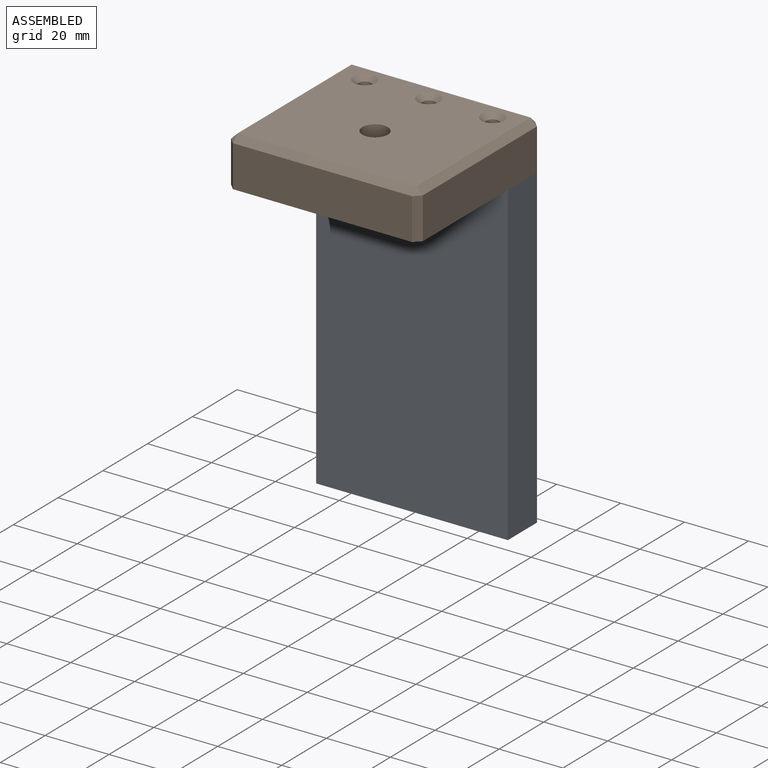
[diagram: assembled view]
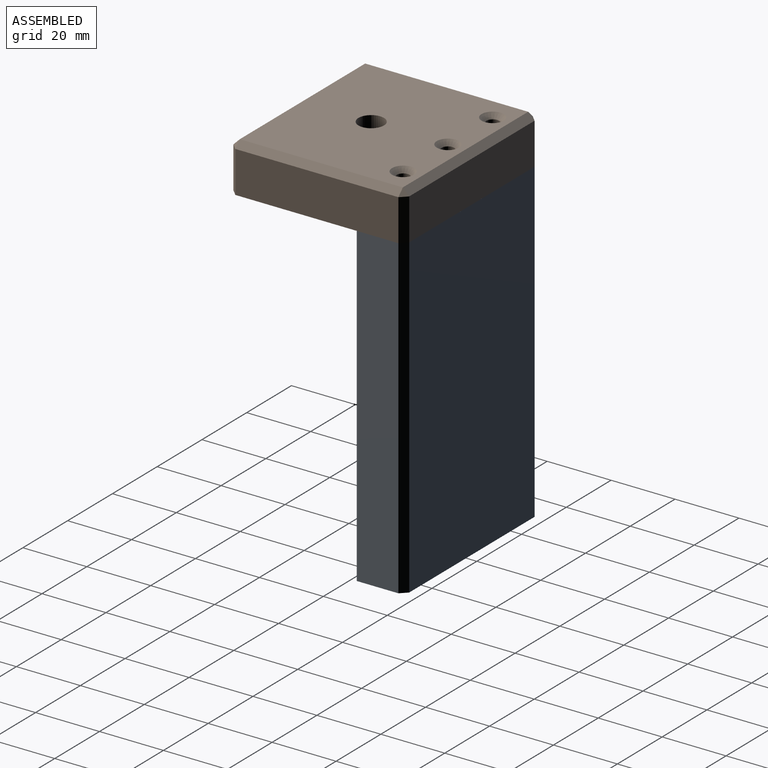
[diagram: assembled view, second angle]
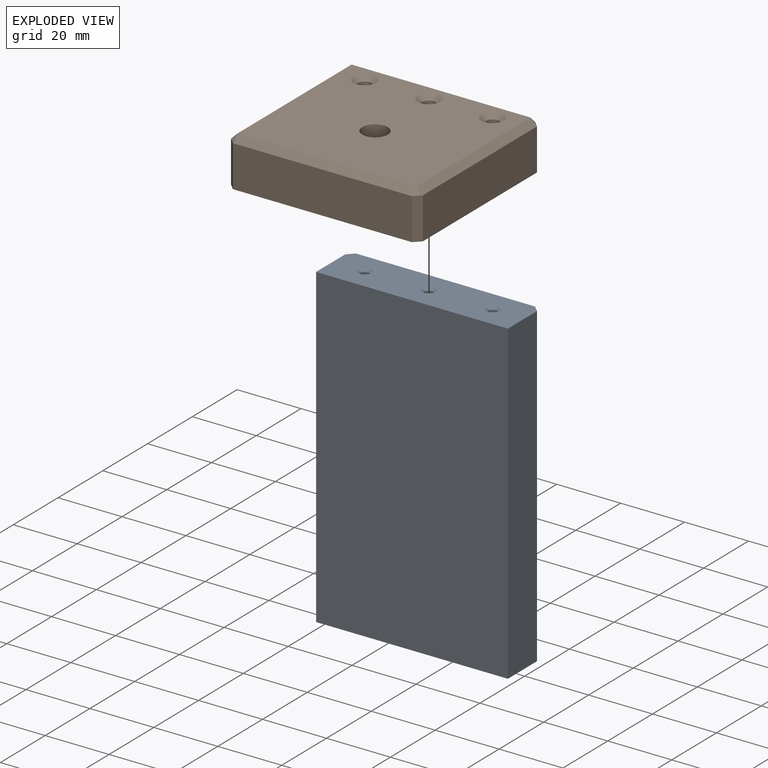
[diagram: exploded view]
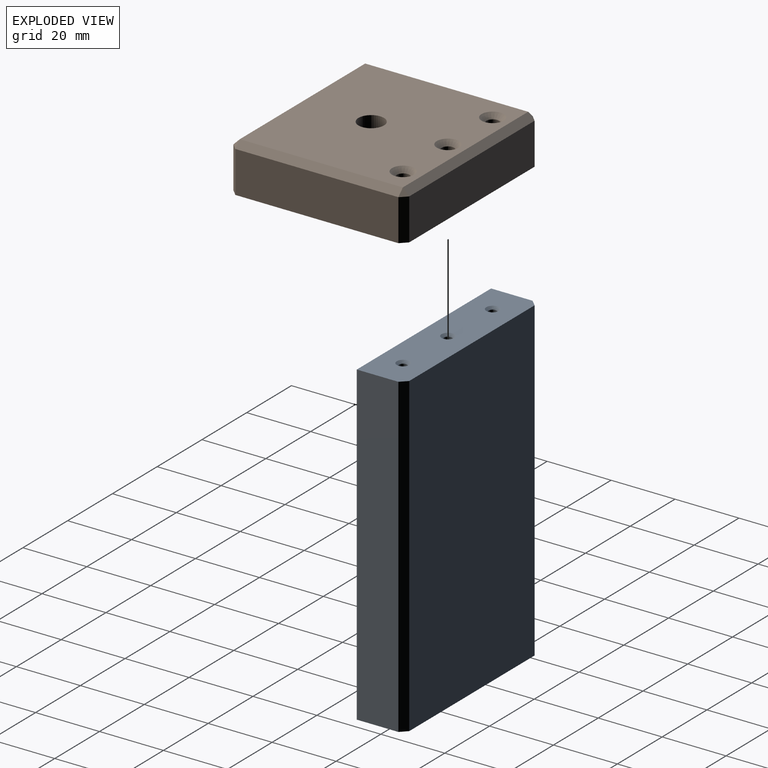
[diagram: exploded view, second angle]
ASSEMBLY  parts=2 mates=3
PART A: 17 faces, bbox 60x15x99 mm
  f0: plane 60x15mm, normal (0,0,1), area 858.3mm2, adj f1,f2,f3,f4,f7,f10,f13,f15
  f1: plane 99x13mm, normal (1,0,0), area 1287mm2, adj f0,f4,f5,f16
  f2: plane 99x56mm, normal (0,1,0), area 5544mm2, adj f0,f5,f15,f16
  f3: plane 99x13mm, normal (-1,0,0), area 1287mm2, adj f0,f4,f5,f15
  f4: plane 99x60mm, normal (0,-1,0), area 5940mm2, adj f0,f1,f3,f5
  f5: plane 60x15mm, normal (0,0,-1), area 896mm2, adj f1,f2,f3,f4,f15,f16
  f6: cylinder r=1.25mm len=24.25mm, axis (0,0,1), area 190.5mm2, adj f7,f8
  f7: cone r=1.25mm half-angle=45deg, axis (0,0,1), area 10.8mm2, adj f0,f6
  f8: cone r=0mm half-angle=59deg, axis (0,0,1), area 5.7mm2, adj f6
  f9: cylinder r=1.25mm len=24.25mm, axis (0,0,1), area 190.5mm2, adj f10,f11
  f10: cone r=1.25mm half-angle=45deg, axis (0,0,1), area 10.8mm2, adj f0,f9
  f11: cone r=0mm half-angle=59deg, axis (0,0,1), area 5.7mm2, adj f9
  f12: cylinder r=1.25mm len=24.25mm, axis (0,0,1), area 190.5mm2, adj f13,f14
  f13: cone r=1.25mm half-angle=45deg, axis (0,0,1), area 10.8mm2, adj f0,f12
  f14: cone r=0mm half-angle=59deg, axis (0,0,1), area 5.7mm2, adj f12
  f15: plane 99x2mm, normal (-0.71,0.71,0), area 280mm2, adj f0,f2,f3,f5
  f16: plane 99x2mm, normal (0.71,0.71,0), area 280mm2, adj f0,f1,f2,f5
PART B: 25 faces, bbox 60x55x15 mm
  f0: plane 56x51mm, normal (0,0,1), area 2690.3mm2, adj f6,f8,f10,f12,f16,f17,f21,f22
  f1: plane 60x55mm, normal (0,0,-1), area 3204mm2, adj f2,f3,f4,f5,f6,f7,f9,f11
  f2: plane 51x13mm, normal (1,0,0), area 663mm2, adj f1,f13,f17,f18
  f3: plane 56x13mm, normal (0,1,0), area 728mm2, adj f1,f13,f15,f16
  f4: plane 51x13mm, normal (-1,0,0), area 663mm2, adj f1,f15,f21,f24
  f5: plane 56x13mm, normal (0,-1,0), area 728mm2, adj f1,f18,f22,f24
  f6: cylinder r=4mm len=15mm, axis (0,0,1), area 377mm2, adj f0,f1
  f7: cylinder r=2mm len=13.5mm, axis (0,0,1), area 169.6mm2, adj f1,f8
  f8: cone r=2mm half-angle=45deg, axis (0,0,1), area 36.7mm2, adj f0,f7
  f9: cylinder r=2mm len=13.5mm, axis (0,0,1), area 169.6mm2, adj f1,f10
  f10: cone r=2mm half-angle=45deg, axis (0,0,1), area 36.7mm2, adj f0,f9
  f11: cylinder r=2mm len=13.5mm, axis (0,0,1), area 169.6mm2, adj f1,f12
  f12: cone r=2mm half-angle=45deg, axis (0,0,1), area 36.7mm2, adj f0,f11
  f13: plane 13x2mm, normal (0.71,0.71,0), area 36.8mm2, adj f1,f2,f3,f14
  f14: plane 2x2mm, normal (0.58,0.58,0.58), area 3.5mm2, adj f13,f16,f17
  f15: plane 13x2mm, normal (-0.71,0.71,0), area 36.8mm2, adj f1,f3,f4,f19
  f16: plane 56x2mm, normal (0,0.71,0.71), area 158.4mm2, adj f0,f3,f14,f19
  f17: plane 51x2mm, normal (0.71,0,0.71), area 144.2mm2, adj f0,f2,f14,f20
  f18: plane 13x2mm, normal (0.71,-0.71,0), area 36.8mm2, adj f1,f2,f5,f20
  f19: plane 2x2mm, normal (-0.58,0.58,0.58), area 3.5mm2, adj f15,f16,f21
  f20: plane 2x2mm, normal (0.58,-0.58,0.58), area 3.5mm2, adj f17,f18,f22
  f21: plane 51x2mm, normal (-0.71,0,0.71), area 144.2mm2, adj f0,f4,f19,f23
  f22: plane 56x2mm, normal (0,-0.71,0.71), area 158.4mm2, adj f0,f5,f20,f23
  f23: plane 2x2mm, normal (-0.58,-0.58,0.58), area 3.5mm2, adj f21,f22,f24
  f24: plane 13x2mm, normal (-0.71,-0.71,0), area 36.8mm2, adj f1,f4,f5,f23
PLACE A t=(-10,0,0)mm
PLACE B t=(-10,-20,0)mm
MATE planar B.f1 <-> A.f0  axis (0,0,-1) through (-10,-20.17,0)mm
MATE planar B.f3 <-> A.f2  axis (0,1,0) through (-10,7.5,6.5)mm
MATE planar B.f2 <-> A.f1  axis (1,0,0) through (20,-20,6.5)mm
